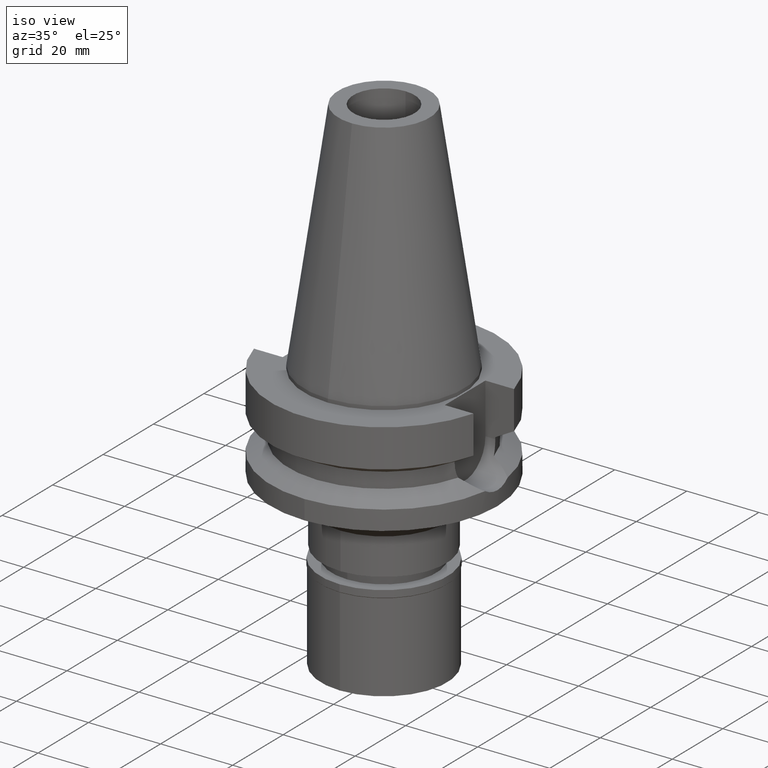
[diagram: clean part render]
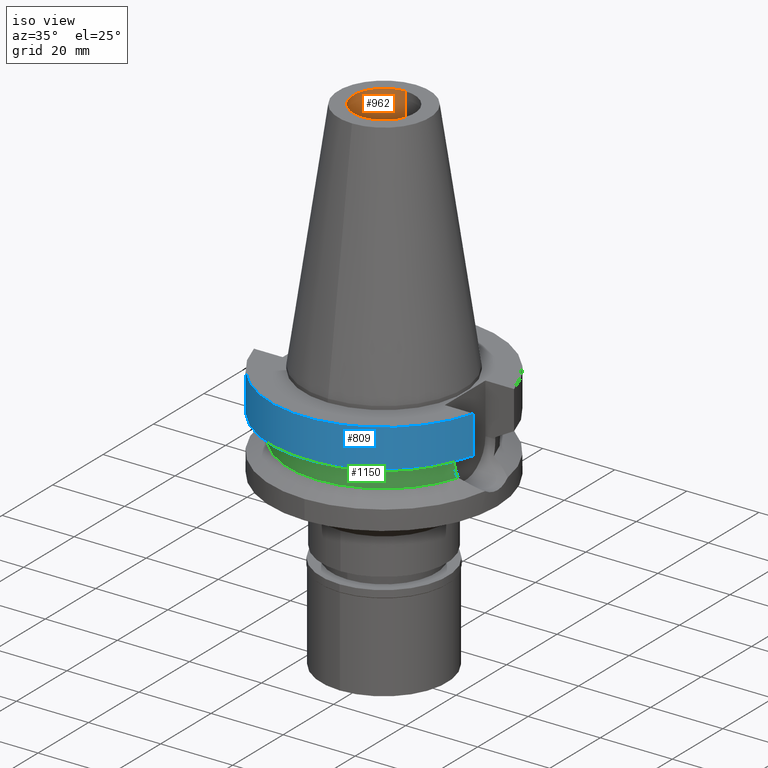
[diagram: same view with three faces highlighted in distinct colors, each labeled with its STEP entity id]
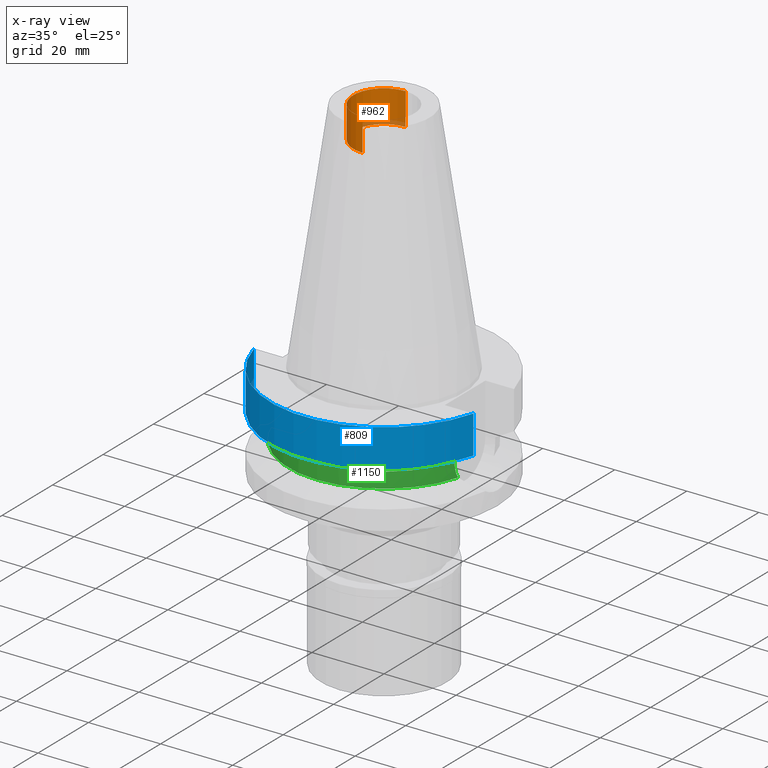
[diagram: x-ray of the same camera — body ghosted, the three highlighted faces saturated]
A machine part, iso view with three faces highlighted in distinct colors.
The next image is the same camera in x-ray (body ghosted, the three faces saturated) — at least one of them is partly hidden behind the body in this view.
Their STEP definitions:

[orange] entity #962 — the highlighted cylindrical surface (partial cylindrical patch) has radius 8.5 mm, axis along (0, 0, -1).
#19 = CARTESIAN_POINT ( 'NONE',  ( 0.0000000000000000000, -8.500000000000000000, 56.39999999999999858 ) ) ;
#74 = DIRECTION ( 'NONE',  ( 0.0000000000000000000, 1.000000000000000000, 0.0000000000000000000 ) ) ;
#125 = EDGE_CURVE ( 'NONE', #2229, #223, #853, .T. ) ;
#187 = EDGE_LOOP ( 'NONE', ( #2786, #618, #2773, #1788 ) ) ;
#223 = VERTEX_POINT ( 'NONE', #494 ) ;
#306 = CYLINDRICAL_SURFACE ( 'NONE', #867, 8.500000000000000000 ) ;
#410 = CARTESIAN_POINT ( 'NONE',  ( 0.0000000000000000000, 8.500000000000000000, 56.39999999999999858 ) ) ;
#494 = CARTESIAN_POINT ( 'NONE',  ( 0.0000000000000000000, 8.500000000000000000, 56.39999999999999858 ) ) ;
#545 = VECTOR ( 'NONE', #616, 1000.000000000000000 ) ;
#550 = CARTESIAN_POINT ( 'NONE',  ( 0.0000000000000000000, 0.0000000000000000000, 56.39999999999999858 ) ) ;
#616 = DIRECTION ( 'NONE',  ( 0.0000000000000000000, 0.0000000000000000000, 1.000000000000000000 ) ) ;
#618 = ORIENTED_EDGE ( 'NONE', *, *, #2741, .F. ) ;
#724 = LINE ( 'NONE', #19, #1314 ) ;
#826 = VERTEX_POINT ( 'NONE', #911 ) ;
#841 = CARTESIAN_POINT ( 'NONE',  ( 0.0000000000000000000, 8.500000000000000000, 65.40000000000000568 ) ) ;
#853 = CIRCLE ( 'NONE', #2549, 8.500000000000000000 ) ;
#867 = AXIS2_PLACEMENT_3D ( 'NONE', #1424, #2846, #2391 ) ;
#911 = CARTESIAN_POINT ( 'NONE',  ( 0.0000000000000000000, -8.500000000000000000, 65.40000000000000568 ) ) ;
#962 = ADVANCED_FACE ( 'NONE', ( #2657 ), #306, .F. ) ;
#1249 = DIRECTION ( 'NONE',  ( 0.0000000000000000000, 0.0000000000000000000, -1.000000000000000000 ) ) ;
#1314 = VECTOR ( 'NONE', #2119, 1000.000000000000000 ) ;
#1424 = CARTESIAN_POINT ( 'NONE',  ( 0.0000000000000000000, 0.0000000000000000000, 0.0000000000000000000 ) ) ;
#1548 = CARTESIAN_POINT ( 'NONE',  ( 0.0000000000000000000, -8.500000000000000000, 56.39999999999999858 ) ) ;
#1688 = CARTESIAN_POINT ( 'NONE',  ( 0.0000000000000000000, 0.0000000000000000000, 65.40000000000000568 ) ) ;
#1744 = VERTEX_POINT ( 'NONE', #841 ) ;
#1788 = ORIENTED_EDGE ( 'NONE', *, *, #2140, .T. ) ;
#2119 = DIRECTION ( 'NONE',  ( 0.0000000000000000000, 0.0000000000000000000, 1.000000000000000000 ) ) ;
#2140 = EDGE_CURVE ( 'NONE', #223, #1744, #2976, .T. ) ;
#2145 = CIRCLE ( 'NONE', #2841, 8.500000000000000000 ) ;
#2229 = VERTEX_POINT ( 'NONE', #1548 ) ;
#2374 = DIRECTION ( 'NONE',  ( 0.0000000000000000000, -1.000000000000000000, 0.0000000000000000000 ) ) ;
#2391 = DIRECTION ( 'NONE',  ( 0.0000000000000000000, -1.000000000000000000, 0.0000000000000000000 ) ) ;
#2549 = AXIS2_PLACEMENT_3D ( 'NONE', #550, #1249, #2374 ) ;
#2555 = EDGE_CURVE ( 'NONE', #1744, #826, #2145, .T. ) ;
#2626 = DIRECTION ( 'NONE',  ( 0.0000000000000000000, 0.0000000000000000000, 1.000000000000000000 ) ) ;
#2657 = FACE_OUTER_BOUND ( 'NONE', #187, .T. ) ;
#2741 = EDGE_CURVE ( 'NONE', #2229, #826, #724, .T. ) ;
#2773 = ORIENTED_EDGE ( 'NONE', *, *, #125, .T. ) ;
#2786 = ORIENTED_EDGE ( 'NONE', *, *, #2555, .T. ) ;
#2841 = AXIS2_PLACEMENT_3D ( 'NONE', #1688, #2626, #74 ) ;
#2846 = DIRECTION ( 'NONE',  ( 0.0000000000000000000, 0.0000000000000000000, -1.000000000000000000 ) ) ;
#2976 = LINE ( 'NONE', #410, #545 ) ;

[blue] entity #809 — the highlighted cylindrical surface (partial cylindrical patch) has radius 31.5 mm, axis along (0, 0, -1).
#7 = CARTESIAN_POINT ( 'NONE',  ( 30.45402272279000044, -8.050000000000000711, -1.000000000000000000 ) ) ;
#12 = ORIENTED_EDGE ( 'NONE', *, *, #2103, .T. ) ;
#21 = EDGE_CURVE ( 'NONE', #452, #1800, #1240, .T. ) ;
#30 = DIRECTION ( 'NONE',  ( 0.0000000000000000000, -1.000000000000000000, 0.0000000000000000000 ) ) ;
#89 = CARTESIAN_POINT ( 'NONE',  ( 30.45402272279000044, -8.050000000000000711, -1.000000000000000000 ) ) ;
#212 = CYLINDRICAL_SURFACE ( 'NONE', #2920, 31.50000000000000000 ) ;
#257 = DIRECTION ( 'NONE',  ( 1.828690627588990048E-08, -6.918158482474961817E-08, 0.9999999999999973355 ) ) ;
#444 = VECTOR ( 'NONE', #257, 1000.000000000000227 ) ;
#452 = VERTEX_POINT ( 'NONE', #89 ) ;
#504 = VERTEX_POINT ( 'NONE', #865 ) ;
#505 = ORIENTED_EDGE ( 'NONE', *, *, #1602, .F. ) ;
#541 = CARTESIAN_POINT ( 'NONE',  ( 0.0000000000000000000, 0.0000000000000000000, -1.000000000000000000 ) ) ;
#602 = CARTESIAN_POINT ( 'NONE',  ( -30.45402291599999955, -8.049999269060998941, -11.56551223608000001 ) ) ;
#611 = VERTEX_POINT ( 'NONE', #602 ) ;
#709 = DIRECTION ( 'NONE',  ( 0.0000000000000000000, 0.0000000000000000000, -1.000000000000000000 ) ) ;
#809 = ADVANCED_FACE ( 'NONE', ( #2344 ), #212, .T. ) ;
#865 = CARTESIAN_POINT ( 'NONE',  ( 30.45402272279000044, -8.049999999999000622, -11.56550565266999975 ) ) ;
#880 = DIRECTION ( 'NONE',  ( 0.0000000000000000000, -1.000000000000000000, 0.0000000000000000000 ) ) ;
#1006 = AXIS2_PLACEMENT_3D ( 'NONE', #541, #1266, #2194 ) ;
#1193 = CARTESIAN_POINT ( 'NONE',  ( -30.45402291599999955, -8.049999269060998941, -11.56551223608000001 ) ) ;
#1240 = CIRCLE ( 'NONE', #1006, 31.50000000000000000 ) ;
#1266 = DIRECTION ( 'NONE',  ( 0.0000000000000000000, 0.0000000000000000000, -1.000000000000000000 ) ) ;
#1404 = LINE ( 'NONE', #1193, #444 ) ;
#1602 = EDGE_CURVE ( 'NONE', #611, #1800, #1404, .T. ) ;
#1708 = CIRCLE ( 'NONE', #2093, 31.50000000000000000 ) ;
#1800 = VERTEX_POINT ( 'NONE', #1830 ) ;
#1822 = EDGE_CURVE ( 'NONE', #452, #504, #1844, .T. ) ;
#1830 = CARTESIAN_POINT ( 'NONE',  ( -30.45402272279000044, -8.050000000000000711, -1.000000000000000000 ) ) ;
#1844 = LINE ( 'NONE', #7, #2390 ) ;
#1982 = CARTESIAN_POINT ( 'NONE',  ( 0.0000000000000000000, 0.0000000000000000000, -11.56550565266999975 ) ) ;
#1990 = ORIENTED_EDGE ( 'NONE', *, *, #1822, .F. ) ;
#2093 = AXIS2_PLACEMENT_3D ( 'NONE', #1982, #2517, #880 ) ;
#2103 = EDGE_CURVE ( 'NONE', #611, #504, #1708, .T. ) ;
#2194 = DIRECTION ( 'NONE',  ( 0.0000000000000000000, -1.000000000000000000, 0.0000000000000000000 ) ) ;
#2305 = ORIENTED_EDGE ( 'NONE', *, *, #21, .T. ) ;
#2344 = FACE_OUTER_BOUND ( 'NONE', #2958, .T. ) ;
#2390 = VECTOR ( 'NONE', #2981, 1000.000000000000114 ) ;
#2517 = DIRECTION ( 'NONE',  ( 0.0000000000000000000, 0.0000000000000000000, 1.000000000000000000 ) ) ;
#2545 = CARTESIAN_POINT ( 'NONE',  ( 0.0000000000000000000, 0.0000000000000000000, 0.0000000000000000000 ) ) ;
#2920 = AXIS2_PLACEMENT_3D ( 'NONE', #2545, #709, #30 ) ;
#2958 = EDGE_LOOP ( 'NONE', ( #505, #12, #1990, #2305 ) ) ;
#2981 = DIRECTION ( 'NONE',  ( -1.041391065312017882E-07, -3.939689928359064512E-07, -0.9999999999999169553 ) ) ;

[green] entity #1150 — the highlighted cylindrical surface (partial cylindrical patch) has radius 26.5 mm, axis along (0, 0, -1).
#65 = CARTESIAN_POINT ( 'NONE',  ( -25.53175183775000079, -7.097862220092999941, -18.74774300138999905 ) ) ;
#97 = VERTEX_POINT ( 'NONE', #2675 ) ;
#99 = FACE_OUTER_BOUND ( 'NONE', #1944, .T. ) ;
#116 = CARTESIAN_POINT ( 'NONE',  ( -25.35410982913710853, -7.708872424741088913, -17.26994189694478266 ) ) ;
#128 = CARTESIAN_POINT ( 'NONE',  ( -25.24772266958000344, -8.050000000000000711, -14.94999999999999929 ) ) ;
#190 = CARTESIAN_POINT ( 'NONE',  ( 25.27269395829114629, -7.971776493309070233, -16.08141134955787876 ) ) ;
#230 = CARTESIAN_POINT ( 'NONE',  ( 25.24772266958000344, -8.050000000000000711, -14.94999999999999929 ) ) ;
#260 = CARTESIAN_POINT ( 'NONE',  ( 25.53175183775000079, -7.097862220092999941, -18.74774300138999905 ) ) ;
#341 = CIRCLE ( 'NONE', #2838, 26.50000000000000711 ) ;
#346 = CARTESIAN_POINT ( 'NONE',  ( 0.0000000000000000000, 0.0000000000000000000, -18.74774300138999905 ) ) ;
#365 = CARTESIAN_POINT ( 'NONE',  ( -25.32418278270154843, -7.806361859899748623, -16.91561764571711990 ) ) ;
#507 = CARTESIAN_POINT ( 'NONE',  ( -25.24772266958000344, -8.050000000000000711, -14.94999999999999929 ) ) ;
#585 = CARTESIAN_POINT ( 'NONE',  ( -25.39163787691585128, -7.584845155546540596, -17.65187522140839960 ) ) ;
#679 = VERTEX_POINT ( 'NONE', #1643 ) ;
#723 = CARTESIAN_POINT ( 'NONE',  ( 25.30215227544256962, -7.877591541979549916, -16.61078271360478453 ) ) ;
#784 = CARTESIAN_POINT ( 'NONE',  ( 25.24772266958000344, -8.050000000000000711, -14.94999999999999929 ) ) ;
#795 = ORIENTED_EDGE ( 'NONE', *, *, #2826, .F. ) ;
#832 = DIRECTION ( 'NONE',  ( 0.0000000000000000000, 0.0000000000000000000, 1.000000000000000000 ) ) ;
#833 = CARTESIAN_POINT ( 'NONE',  ( -25.24772266958000344, -8.049999999999997158, -15.58995917011465338 ) ) ;
#947 = ORIENTED_EDGE ( 'NONE', *, *, #2326, .F. ) ;
#975 = LINE ( 'NONE', #1856, #2240 ) ;
#994 = VECTOR ( 'NONE', #1931, 1000.000000000000227 ) ;
#1058 = CARTESIAN_POINT ( 'NONE',  ( -25.32843378481450003, -7.792569787452790386, -16.96958526498662678 ) ) ;
#1069 = DIRECTION ( 'NONE',  ( 0.0000000000000000000, 0.0000000000000000000, -1.000000000000000000 ) ) ;
#1072 = CARTESIAN_POINT ( 'NONE',  ( 0.0000000000000000000, 0.0000000000000000000, -14.45225699861000024 ) ) ;
#1150 = ADVANCED_FACE ( 'NONE', ( #99 ), #1964, .T. ) ;
#1161 = VERTEX_POINT ( 'NONE', #128 ) ;
#1165 = CARTESIAN_POINT ( 'NONE',  ( 25.31953951064866004, -7.821415171321405069, -16.85483643466246662 ) ) ;
#1179 = CARTESIAN_POINT ( 'NONE',  ( 25.24772266957999634, -8.049999999999998934, -15.26998665910056729 ) ) ;
#1202 = B_SPLINE_CURVE_WITH_KNOTS ( 'NONE', 3,
 ( #230, #1179, #1393, #190, #1361, #2299, #723, #1378, #2312, #1165, #2801, #2099, #2579, #260 ),
 .UNSPECIFIED., .F., .F.,
 ( 4, 2, 2, 1, 1, 2, 2, 4 ),
 ( 0.0000000000000000000, 0.2499999999999878431, 0.3749999999999811817, 0.4374999999999791833, 0.4687499999999782396, 0.4843749999999779621, 0.4999999999999776845, 1.000000000000000000 ),
 .UNSPECIFIED. ) ;
#1241 = CARTESIAN_POINT ( 'NONE',  ( -25.37572056917365870, -7.637749951104082058, -17.49806859188343466 ) ) ;
#1281 = CARTESIAN_POINT ( 'NONE',  ( -25.44392024329593482, -7.408267248946160066, -18.11703320963102826 ) ) ;
#1307 = DIRECTION ( 'NONE',  ( 0.0000000000000000000, 0.0000000000000000000, -1.000000000000000000 ) ) ;
#1361 = CARTESIAN_POINT ( 'NONE',  ( 25.28049748601337043, -7.946994850372480101, -16.24429618630643191 ) ) ;
#1378 = CARTESIAN_POINT ( 'NONE',  ( 25.31205300124014812, -7.845639649894708967, -16.75318914316949304 ) ) ;
#1393 = CARTESIAN_POINT ( 'NONE',  ( 25.25396549175777849, -8.030898715954533529, -15.59375012140848149 ) ) ;
#1490 = ORIENTED_EDGE ( 'NONE', *, *, #2418, .F. ) ;
#1498 = CARTESIAN_POINT ( 'NONE',  ( -25.34387076451303855, -7.742375422222766090, -17.15652271136239193 ) ) ;
#1558 = CIRCLE ( 'NONE', #1956, 26.49999999999998224 ) ;
#1584 = B_SPLINE_CURVE_WITH_KNOTS ( 'NONE', 3,
 ( #1947, #2433, #1281, #585, #1241, #116, #1498, #1725, #1058, #2932, #365, #1748, #833, #2687 ),
 .UNSPECIFIED., .F., .F.,
 ( 4, 2, 2, 1, 1, 2, 2, 4 ),
 ( 0.0000000000000000000, 0.2500000000000172640, 0.3750000000000262013, 0.4375000000000318634, 0.4687500000000333067, 0.4843750000000340283, 0.5000000000000347500, 1.000000000000000000 ),
 .UNSPECIFIED. ) ;
#1592 = EDGE_CURVE ( 'NONE', #1161, #97, #1887, .T. ) ;
#1643 = CARTESIAN_POINT ( 'NONE',  ( 25.24772266958000344, -8.050000000000000711, -14.45225699861000024 ) ) ;
#1725 = CARTESIAN_POINT ( 'NONE',  ( -25.33291622355807959, -7.778016509995407723, -17.02546682202605766 ) ) ;
#1748 = CARTESIAN_POINT ( 'NONE',  ( -25.27268923712989590, -7.973297925127468488, -16.24528153450880197 ) ) ;
#1756 = AXIS2_PLACEMENT_3D ( 'NONE', #2930, #1069, #2914 ) ;
#1847 = ORIENTED_EDGE ( 'NONE', *, *, #1592, .F. ) ;
#1856 = CARTESIAN_POINT ( 'NONE',  ( 25.24772217012000297, -8.050001566479000559, -14.45224502932000021 ) ) ;
#1887 = LINE ( 'NONE', #507, #994 ) ;
#1891 = DIRECTION ( 'NONE',  ( 1.003419480217044292E-06, 3.147089661331141165E-06, -0.9999999999945444751 ) ) ;
#1931 = DIRECTION ( 'NONE',  ( -2.952567453016896084E-06, 9.260329383324671597E-06, 0.9999999999527642291 ) ) ;
#1944 = EDGE_LOOP ( 'NONE', ( #795, #2431, #1490, #947, #2704, #1847 ) ) ;
#1947 = CARTESIAN_POINT ( 'NONE',  ( -25.53175183775000079, -7.097862220092999941, -18.74774300138999905 ) ) ;
#1956 = AXIS2_PLACEMENT_3D ( 'NONE', #346, #832, #1978 ) ;
#1964 = CYLINDRICAL_SURFACE ( 'NONE', #1756, 26.50000000000000000 ) ;
#1978 = DIRECTION ( 'NONE',  ( -0.9634623335000935818, -0.2678438573619981722, 0.0000000000000000000 ) ) ;
#1993 = CARTESIAN_POINT ( 'NONE',  ( 25.53175183775000079, -7.097862220092999941, -18.74774300138999905 ) ) ;
#2010 = DIRECTION ( 'NONE',  ( 0.9527442516822307583, -0.3037735849057093818, 0.0000000000000000000 ) ) ;
#2013 = VERTEX_POINT ( 'NONE', #65 ) ;
#2099 = CARTESIAN_POINT ( 'NONE',  ( 25.36818004982161767, -7.663723843674689284, -17.48832929065076769 ) ) ;
#2155 = VERTEX_POINT ( 'NONE', #1993 ) ;
#2232 = EDGE_CURVE ( 'NONE', #679, #97, #341, .T. ) ;
#2240 = VECTOR ( 'NONE', #1891, 1000.000000000000000 ) ;
#2299 = CARTESIAN_POINT ( 'NONE',  ( 25.29454383591339806, -7.902025198966775577, -16.48862120007739307 ) ) ;
#2312 = CARTESIAN_POINT ( 'NONE',  ( 25.31651564365630236, -7.831204104224872786, -16.81418330723290566 ) ) ;
#2326 = EDGE_CURVE ( 'NONE', #679, #2893, #975, .T. ) ;
#2418 = EDGE_CURVE ( 'NONE', #2893, #2155, #1202, .T. ) ;
#2431 = ORIENTED_EDGE ( 'NONE', *, *, #2573, .T. ) ;
#2433 = CARTESIAN_POINT ( 'NONE',  ( -25.48481574508731029, -7.266696248282656256, -18.43219751299597320 ) ) ;
#2573 = EDGE_CURVE ( 'NONE', #2013, #2155, #1558, .T. ) ;
#2579 = CARTESIAN_POINT ( 'NONE',  ( 25.43788515050048815, -7.435510499323380706, -18.11668898747524281 ) ) ;
#2675 = CARTESIAN_POINT ( 'NONE',  ( -25.24772413910000068, -8.049995391061999683, -14.45229221693000099 ) ) ;
#2687 = CARTESIAN_POINT ( 'NONE',  ( -25.24772266958000344, -8.050000000000000711, -14.94999999999999929 ) ) ;
#2704 = ORIENTED_EDGE ( 'NONE', *, *, #2232, .T. ) ;
#2801 = CARTESIAN_POINT ( 'NONE',  ( 25.32121330089754707, -7.815992399065534890, -16.87694767644823912 ) ) ;
#2826 = EDGE_CURVE ( 'NONE', #2013, #1161, #1584, .T. ) ;
#2838 = AXIS2_PLACEMENT_3D ( 'NONE', #1072, #1307, #2010 ) ;
#2893 = VERTEX_POINT ( 'NONE', #784 ) ;
#2914 = DIRECTION ( 'NONE',  ( 0.0000000000000000000, -1.000000000000000000, 0.0000000000000000000 ) ) ;
#2930 = CARTESIAN_POINT ( 'NONE',  ( 0.0000000000000000000, 0.0000000000000000000, 0.0000000000000000000 ) ) ;
#2932 = CARTESIAN_POINT ( 'NONE',  ( -25.32549268443495905, -7.802113524031427438, -16.93239579625237212 ) ) ;